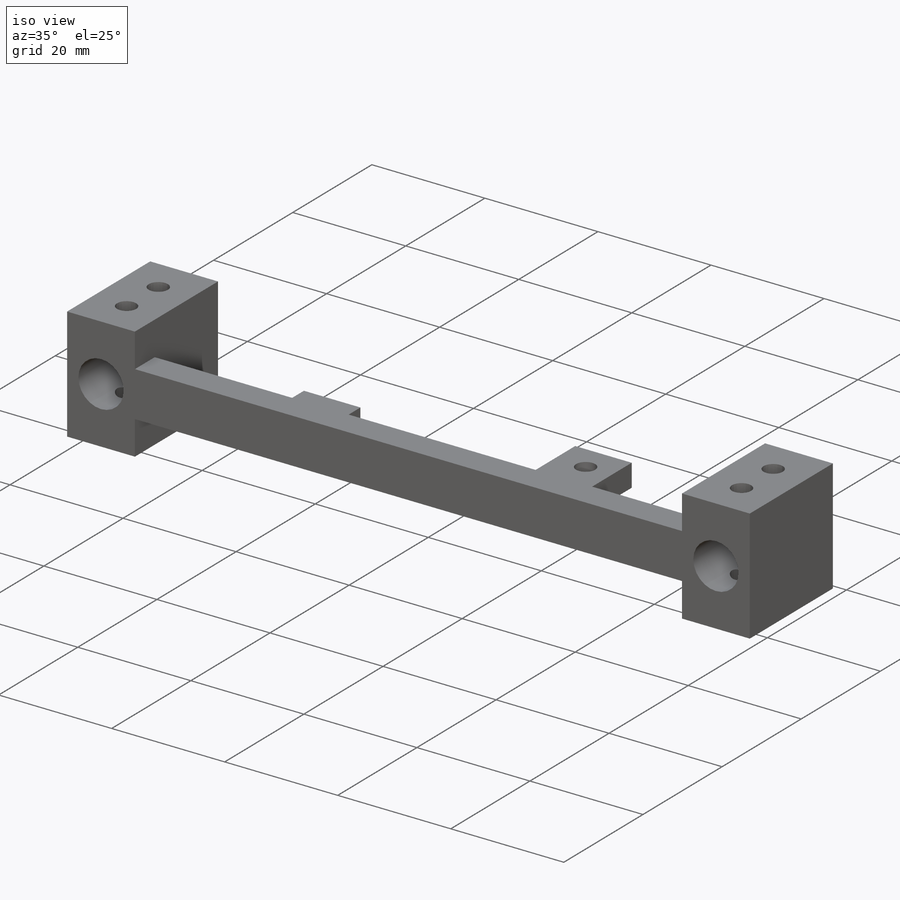
[diagram: iso view]
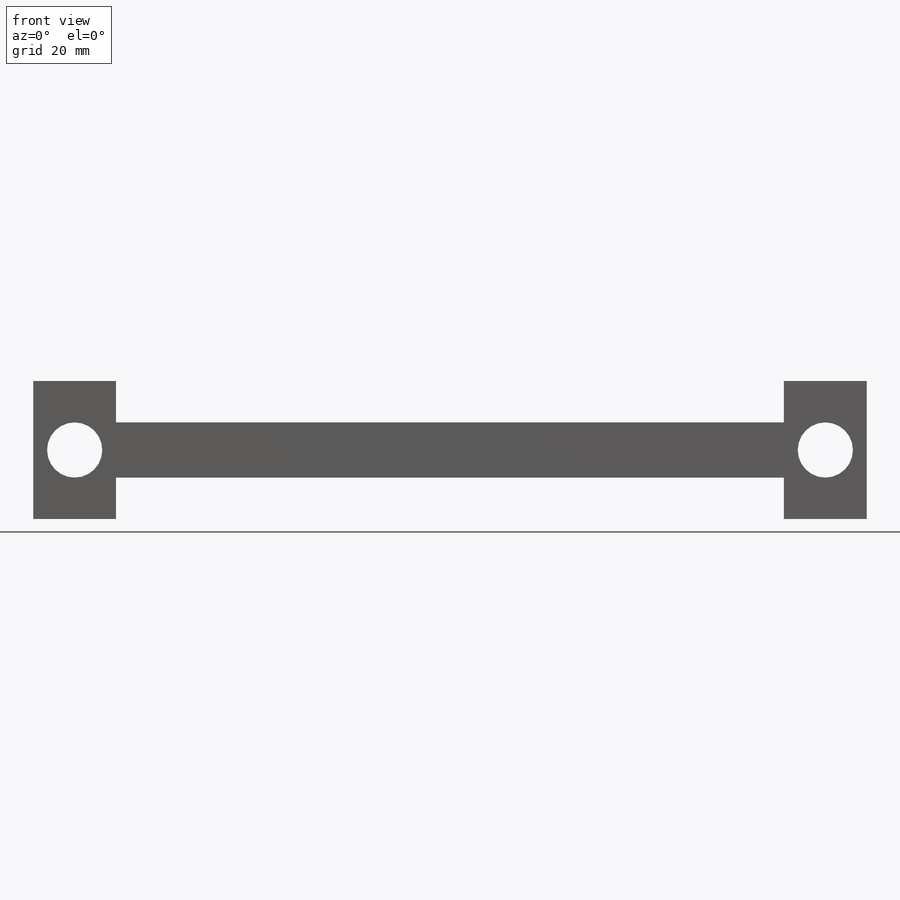
[diagram: front view]
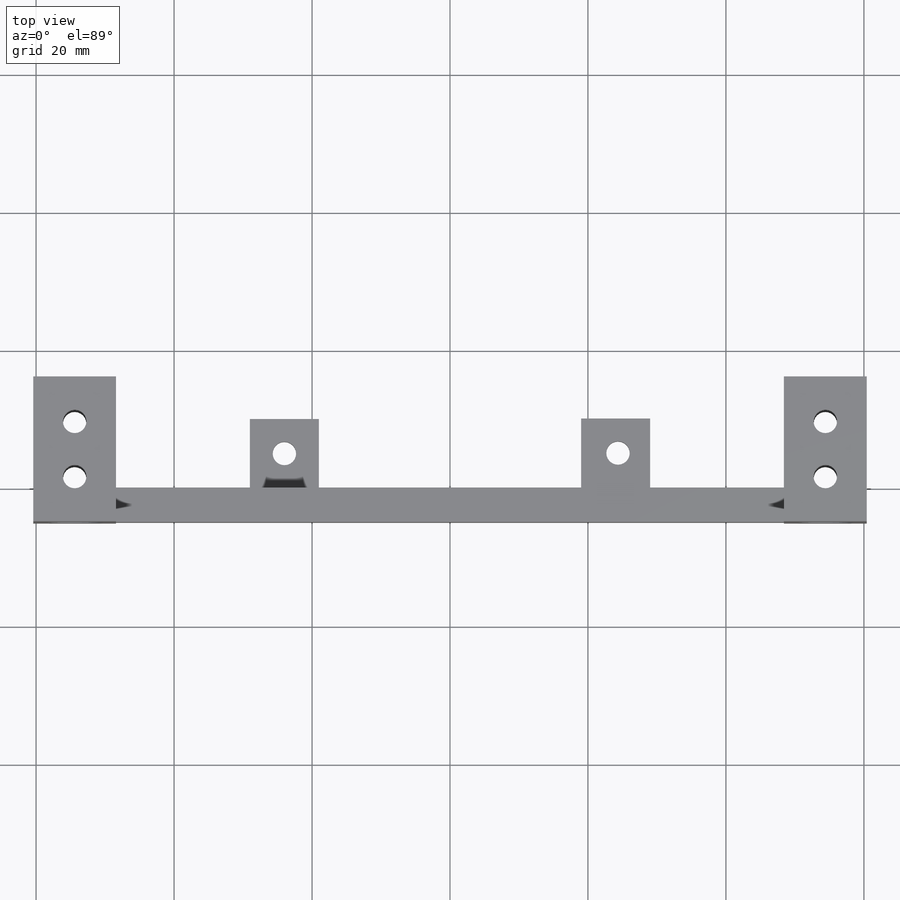
[diagram: top view]
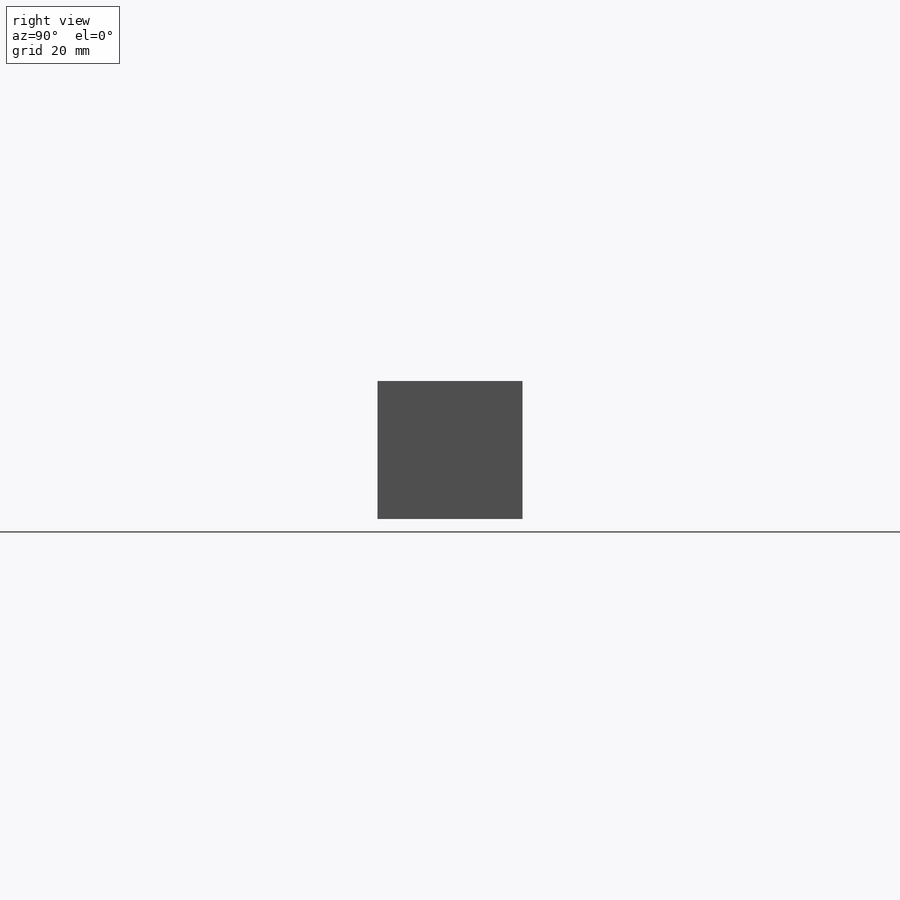
[diagram: right view]
SOLIDWORKS PART (.sldprt)
format: sldprt  version: not decoded by parser v0  size: 263,680 bytes
history: native  units: mm
features: sketch x6, plane x3, extrude x3, cut_extrude x3, material x1 (+10 scaffold rows collapsed)
feature tree (26):
  scaffold x10  (default folders/planes/origin — collapsed)
  material  "Matériau <non spécifié>"
  plane  "Plan de face"
  plane  "Plan de dessus"
  plane  "Plan de droite"
  sketch  "Esquisse1"  dims[c1.D5=~2.222989mm c1.D1=48.35mm c1.D2=5.5mm c1.D3=5.5mm c1.D4=5.0mm c2.D5=~59.534411mm c2.D1=120.8mm c2.D2=8.0mm]
  extrude  "Boss.-Extru.1"  Depth=5mm
  sketch  "Esquisse2"  dims[c1.D1=24.175mm c1.D2=19.0mm c1.D3=4.0mm c1.D4=4.0mm c1.D5=10.0mm c1.D6=10.0mm c1.D7=19.0mm c2.D3=4.0mm c2.D4=4.0mm]
  extrude  "Boss.-Extru.2"  Depth=10mm
  sketch  "Esquisse3"  dims[D1=48.35mm]
  cut_extrude  "Enlèv. mat.-Extru.1"  Depth=10mm
  sketch  "Esquisse4"  dims[D1=6.0mm D2=20.0mm]
  extrude  "Boss.-Extru.3"  Depth=16mm
  sketch  "Esquisse5"  dims[D1=~3.335718mm]
  cut_extrude  "Enlèv. mat.-Extru.2"  Depth=24mm
  sketch  "Esquisse6"  dims[D2=~2.079884mm D1=8.0mm]
  cut_extrude  "Enlèv. mat.-Extru.3"  Depth=24mm
decode coverage: 12 of 12 modeling features carry decoded parameters
note: ~ marks probable driven/reference dimensions
note: suppression state not decoded; provenance and decode notes live in map.json
